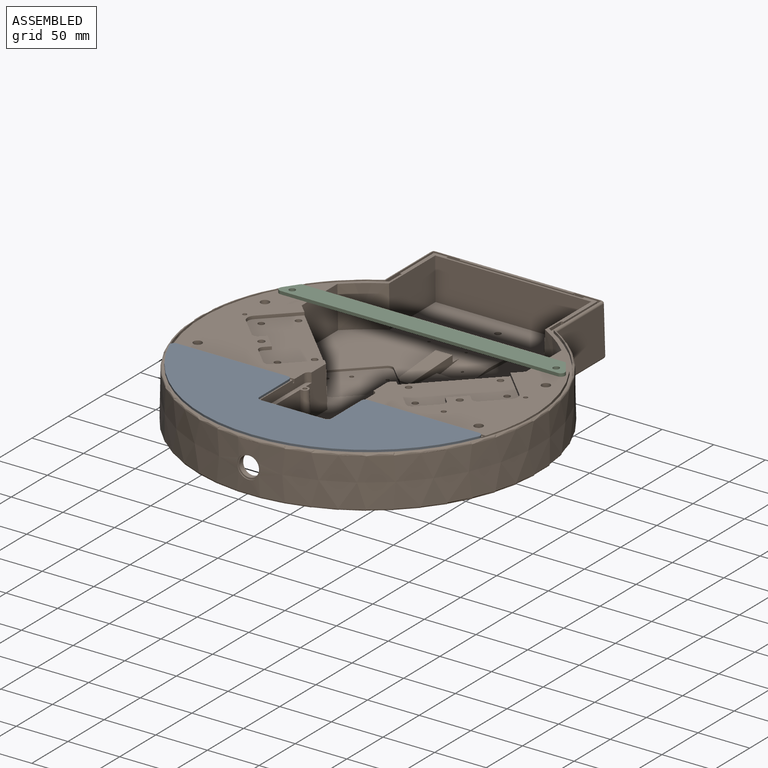
[diagram: assembled view]
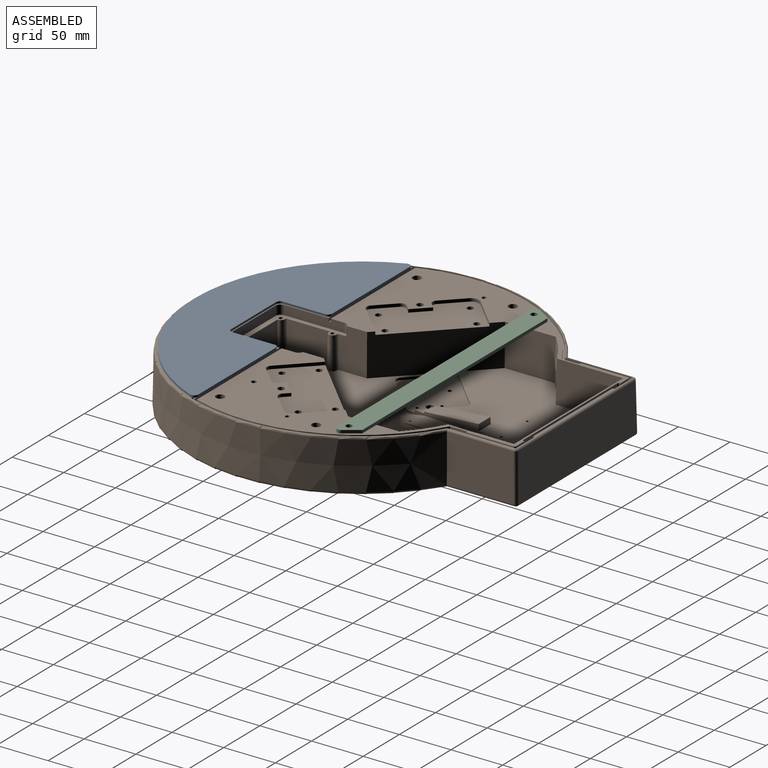
[diagram: assembled view, second angle]
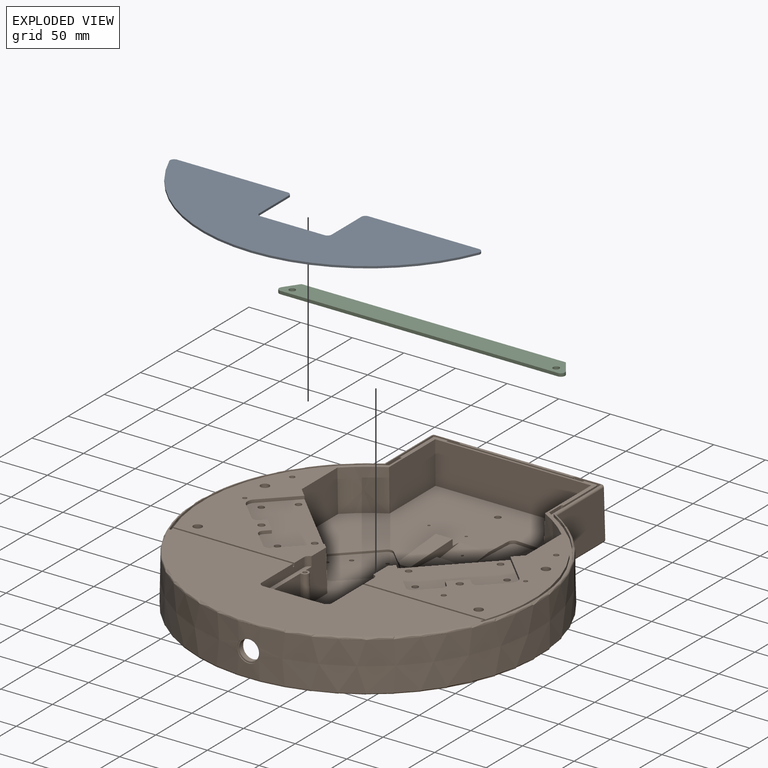
[diagram: exploded view]
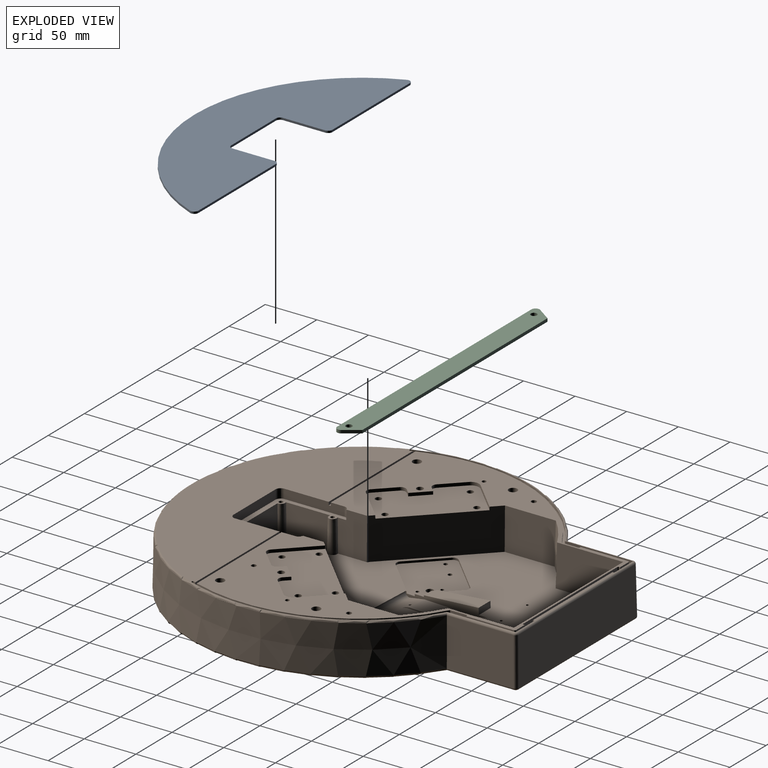
[diagram: exploded view, second angle]
ASSEMBLY  parts=3 mates=2
PART A: 14 faces, bbox 300.3x106x2 mm
  f0: cylinder r=4mm len=5.52mm, axis (0,0,-1), area 15.7mm2, adj f1,f11,f12,f13
  f1: cylinder r=161.98mm len=299.7mm, axis (0,0,-1), area 765.4mm2, adj f0,f2,f12,f13
  f2: cylinder r=4mm len=5.52mm, axis (0,0,-1), area 15.7mm2, adj f1,f3,f12,f13
  f3: plane 107.15x2mm, normal (0,1,0), area 214.3mm2, adj f2,f4,f12,f13
  f4: cylinder r=4mm len=4mm, axis (0,0,-1), area 12.6mm2, adj f3,f5,f12,f13
  f5: plane 41x2mm, normal (-1,0,0), area 82mm2, adj f4,f6,f12,f13
  f6: cylinder r=4mm len=4mm, axis (0,0,-1), area 12.6mm2, adj f5,f7,f12,f13
  f7: plane 62x2mm, normal (0,1,0), area 124mm2, adj f6,f8,f12,f13
  f8: cylinder r=4mm len=4mm, axis (0,0,-1), area 12.6mm2, adj f7,f9,f12,f13
  f9: plane 41x2mm, normal (1,0,0), area 82mm2, adj f8,f10,f12,f13
  f10: cylinder r=4mm len=4mm, axis (0,0,-1), area 12.6mm2, adj f9,f11,f12,f13
  f11: plane 107.15x2mm, normal (0,1,0), area 214.3mm2, adj f0,f10,f12,f13
  f12: plane 300.3x106mm, normal (0,0,1), area 20000.5mm2, adj f0,f1,f2,f3,f4,f5,f6,f7
  f13: plane 300.3x106mm, normal (0,0,-1), area 20000.5mm2, adj f0,f1,f2,f3,f4,f5,f6,f7
PART B: 355 faces, bbox 390.3x359.4x51.5 mm
  f0: cylinder r=1.25mm len=10mm, axis (0,0,-1), area 78.5mm2, adj f1,f57
  f1: cone r=1.25mm half-angle=59deg, axis (0,0,-1), area 5.7mm2, adj f0
  f2: cylinder r=5mm len=5.26mm, axis (0,0,1), area 23.6mm2, adj f56,f350,f351,f352
  f3: cylinder r=1.25mm len=6mm, axis (0,0,1), area 47.1mm2, adj f56,f170
  f4: cylinder r=1.25mm len=6mm, axis (0,0,1), area 47.1mm2, adj f56,f170
  f5: cylinder r=1mm len=1.71mm, axis (0,0,1), area 1.6mm2, adj f310,f338,f339,f340
  f6: cylinder r=2.4mm len=6mm, axis (0,0,1), area 90.5mm2, adj f75,f112
  f7: cylinder r=4mm len=85.13mm, axis (0.05,1,0), area 644.6mm2, adj f56,f316,f317,f319,f320
  f8: cylinder r=1.65mm len=4mm, axis (0,0,1), area 39.3mm2, adj f170,f310,f338,f339,f340,f341,f342,f343
  f9: cylinder r=1.25mm len=4.16mm, axis (-0.17,0.01,0.98), area 28mm2, adj f170,f315
  f10: cylinder r=1.25mm len=4.16mm, axis (-0.17,0.01,0.98), area 28mm2, adj f170,f315
  f11: cylinder r=1.25mm len=4.02mm, axis (-0.17,0.01,0.98), area 26.9mm2, adj f170,f317
  f12: cylinder r=1.25mm len=4.02mm, axis (-0.17,0.01,0.98), area 26.9mm2, adj f170,f317
  f13: cylinder r=1.65mm len=4mm, axis (0,0,1), area 41.5mm2, adj f67,f170
  f14: cylinder r=1.65mm len=4mm, axis (0,0,1), area 41.5mm2, adj f67,f170
  f15: cylinder r=3.5mm len=7mm, axis (0,0,1), area 88mm2, adj f67,f170
  f16: cylinder r=3mm len=6mm, axis (0,0,-1), area 113.1mm2, adj f56,f170
  f17: cylinder r=9.6mm len=19.2mm, axis (-1,0,0), area 313.8mm2, adj f71,f72
  f18: cylinder r=11mm len=22mm, axis (-1,0,0), area 55.2mm2, adj f72,f73
  f19: cylinder r=2mm len=4mm, axis (0,0,1), area 50.3mm2, adj f67,f170
  f20: cylinder r=2mm len=4mm, axis (0,0,1), area 50.3mm2, adj f67,f170
  f21: cylinder r=5mm len=7.07mm, axis (0,0,1), area 15.7mm2, adj f56,f65,f67,f312
  f22: cylinder r=2mm len=4mm, axis (0,0,1), area 50.3mm2, adj f170,f310
  f23: cylinder r=2mm len=4mm, axis (0,0,1), area 50.3mm2, adj f170,f310
  f24: cylinder r=5mm len=5.26mm, axis (0,0,1), area 15.7mm2, adj f56,f304,f305,f310
  f25: cylinder r=2mm len=15mm, axis (0,0,1), area 188.5mm2, adj f230,f302
  f26: cylinder r=2mm len=15mm, axis (0,0,1), area 188.5mm2, adj f230,f301
  f27: cylinder r=2mm len=15mm, axis (0,0,1), area 188.5mm2, adj f230,f300
  f28: cylinder r=2mm len=15mm, axis (0,0,1), area 188.5mm2, adj f230,f299
  f29: cylinder r=3mm len=20mm, axis (0,0,-1), area 377mm2, adj f74,f298
  f30: cylinder r=2.5mm len=6mm, axis (0,0,1), area 94.2mm2, adj f75,f76
  f31: cylinder r=3.2mm len=9mm, axis (0,0,1), area 181mm2, adj f75,f77
  f32: cylinder r=2mm len=9mm, axis (0,0,1), area 113.1mm2, adj f75,f78
  f33: cylinder r=4.15mm len=9mm, axis (0,0,1), area 234.7mm2, adj f75,f78
  f34: cylinder r=4.15mm len=9mm, axis (0,0,1), area 234.7mm2, adj f75,f78
  f35: cylinder r=3mm len=17mm, axis (0,0,1), area 320.4mm2, adj f284,f297
  f36: cylinder r=3mm len=17mm, axis (0,0,1), area 320.4mm2, adj f284,f296
  f37: cylinder r=3mm len=17mm, axis (0,0,1), area 320.4mm2, adj f284,f295
  f38: cylinder r=3mm len=17mm, axis (0,0,1), area 320.4mm2, adj f284,f294
  f39: cylinder r=3mm len=20mm, axis (0,0,-1), area 377mm2, adj f57,f281
  f40: cylinder r=2.5mm len=6mm, axis (0,0,1), area 94.2mm2, adj f75,f102
  f41: cylinder r=3.2mm len=9mm, axis (0,0,1), area 181mm2, adj f75,f111
  f42: cylinder r=2mm len=9mm, axis (0,0,1), area 113.1mm2, adj f75,f189
  f43: cylinder r=4.15mm len=9mm, axis (0,0,1), area 234.7mm2, adj f75,f189
  f44: cylinder r=4.15mm len=9mm, axis (0,0,1), area 234.7mm2, adj f75,f189
  f45: cylinder r=3mm len=17mm, axis (0,0,1), area 320.4mm2, adj f267,f280
  f46: cylinder r=3mm len=17mm, axis (0,0,1), area 320.4mm2, adj f267,f279
  f47: cylinder r=3mm len=17mm, axis (0,0,1), area 320.4mm2, adj f267,f278
  f48: cylinder r=3mm len=17mm, axis (0,0,1), area 320.4mm2, adj f267,f277
  f49: cone r=6mm half-angle=1.5deg, axis (0,0,1), area 476.4mm2, adj f189,f199,f200,f201
  f50: cone r=6mm half-angle=1.5deg, axis (0,0,1), area 135.8mm2, adj f111,f119,f196,f198
  f51: cone r=6mm half-angle=1.5deg, axis (0,0,1), area 167.3mm2, adj f109,f118,f119,f195
  f52: cone r=6mm half-angle=1.5deg, axis (0,0,1), area 476.4mm2, adj f78,f136,f137,f176
  f53: cone r=6mm half-angle=1.5deg, axis (0,0,1), area 135.8mm2, adj f77,f138,f140,f177
  f54: cone r=6mm half-angle=1.5deg, axis (0,0,1), area 167.3mm2, adj f135,f138,f142,f143
  f55: plane 34.75x17.26mm, normal (0,0,1), area 526.8mm2, adj f316,f317,f318,f347
  f56: plane 296.91x214.91mm, normal (0,0,1), area 26099.7mm2, adj f2,f3,f4,f7,f16,f21,f24,f64
  f57: plane 184.64x94.33mm, normal (0,0,-1), area 1715.7mm2, adj f0,f39,f59,f60,f71,f100,f101,f104
  f58: plane 14.71x8.62mm, normal (0,0,-1), area 92.4mm2, adj f59,f60,f167,f169,f337
  f59: plane 69.88x30.57mm, normal (0.99,0.16,-0.03), area 2028.1mm2, adj f57,f58,f115,f116,f120,f169,f193,f195
  f60: plane 70.18x30.57mm, normal (-0.99,-0.16,-0.03), area 2059.1mm2, adj f57,f58,f103,f104,f106,f167,f335,f336
  f61: plane 9.65x9.17mm, normal (0,0,1), area 44.2mm2, adj f62,f65,f320
  f62: plane 9.65x1.44mm, normal (-1,0,0), area 13.9mm2, adj f61,f63,f65,f320
  f63: plane 55x16.33mm, normal (-0.09,0,1), area 814.7mm2, adj f62,f64,f65,f70,f320
  f64: plane 16.34x6.25mm, normal (1,0,0.03), area 102.2mm2, adj f56,f63,f70,f320
  f65: plane 28.68x28.68mm, normal (-0.71,0.71,0), area 89.8mm2, adj f21,f56,f61,f62,f63,f67,f70,f320
  f66: plane 36.03x36.03mm, normal (0.71,0.71,0), area 101.9mm2, adj f56,f67,f313,f320
  f67: plane 75.76x73.99mm, normal (0,0,1), area 3048.7mm2, adj f13,f14,f15,f19,f20,f21,f65,f66
  f68: plane 34.96x21.25mm, normal (0,0,1), area 662.8mm2, adj f317,f318,f320,f346
  f69: plane 84.88x4.46mm, normal (0.98,-0.05,0.17), area 6.7mm2, adj f315,f316,f318,f320
  f70: plane 51.42x6.25mm, normal (0,1,0), area 206.1mm2, adj f56,f63,f64,f65
  f71: cone r=158.5mm half-angle=1deg, axis (0,0,-1), area 28884mm2, adj f17,f57,f74,f76,f78,f99,f101,f102
  f72: plane 22x22mm, normal (-1,0,0), area 90.6mm2, adj f17,f18
  f73: cone r=164.5mm half-angle=1deg, axis (0,0,-1), area 39196mm2, adj f18,f151,f153,f212,f219
  f74: plane 184.64x111.96mm, normal (0,0,-1), area 1838.7mm2, adj f29,f71,f121,f122,f124,f127,f128,f130
  f75: plane 320.47x257.73mm, normal (0,0,1), area 17860.1mm2, adj f6,f30,f31,f32,f33,f34,f40,f41
  f76: plane 41.82x28.9mm, normal (0,0,-1), area 654.1mm2, adj f30,f71,f124,f186
  f77: plane 80.84x57.22mm, normal (0,0,-1), area 2574.8mm2, adj f31,f53,f138,f140,f144,f145,f146,f147
  f78: plane 116.94x44.45mm, normal (0,0,-1), area 4502.4mm2, adj f32,f33,f34,f52,f71,f121,f122,f136
  f79: plane 79.55x78.93mm, normal (0.71,-0.71,0.03), area 4166.1mm2, adj f56,f75,f155,f156,f282,f283,f284
  f80: plane 369.57x325.07mm, normal (0,0,1), area 21110.3mm2, adj f81,f82,f212,f213,f214,f215,f216,f217
  f81: plane 116.5x3mm, normal (1,0,0), area 349.5mm2, adj f80,f82,f249,f259
  f82: plane 58x9mm, normal (0,1,0), area 516mm2, adj f75,f80,f81,f228,f230,f233,f248,f249
  f83: plane 42.53x31mm, normal (0,1,0.03), area 1293.7mm2, adj f56,f94,f97,f230
  f84: plane 48.56x31.01mm, normal (1,0,0.03), area 1480.1mm2, adj f56,f87,f88,f92,f93,f230
  f85: plane 42.53x31mm, normal (0,-1,0.03), area 1293.7mm2, adj f56,f86,f90,f230
  f86: plane 31x1.76mm, normal (1,0,0.03), area 42.1mm2, adj f56,f85,f87,f230
  f87: cone r=3.5mm half-angle=1.5deg, axis (0,0,-1), area 208mm2, adj f56,f84,f86,f88,f230
  f88: plane 18.97x0.51mm, normal (0,-1,0.03), area 4.9mm2, adj f84,f87,f230
  f89: cone r=3.5mm half-angle=1.5deg, axis (0,0,-1), area 403.5mm2, adj f56,f90,f91,f230
  f90: plane 31x1.76mm, normal (-1,0,0.03), area 42.1mm2, adj f56,f85,f89,f230
  f91: plane 31x1.76mm, normal (1,0,0.03), area 42.1mm2, adj f56,f89,f155,f230
  f92: plane 18.97x0.51mm, normal (0,1,0.03), area 4.9mm2, adj f84,f93,f230
  f93: cone r=3.5mm half-angle=1.5deg, axis (0,0,-1), area 208mm2, adj f56,f84,f92,f94,f230
  f94: plane 31x1.76mm, normal (1,0,0.03), area 42.1mm2, adj f56,f83,f93,f230
  f95: cone r=3.5mm half-angle=1.5deg, axis (0,0,-1), area 403.5mm2, adj f56,f96,f97,f230
  f96: plane 31x1.76mm, normal (1,0,0.03), area 42.1mm2, adj f56,f95,f98,f230
  f97: plane 31x1.76mm, normal (-1,0,0.03), area 42.1mm2, adj f56,f83,f95,f230
  f98: plane 40x28.7mm, normal (0,1,0.03), area 1053.4mm2, adj f56,f75,f96,f163,f228,f230
  f99: plane 33.78x25.99mm, normal (0,0,-1), area 688.3mm2, adj f71,f100,f172,f207,f209
  f100: plane 144.05x30mm, normal (0,-1,-0.03), area 3766.4mm2, adj f57,f99,f101,f172,f189,f199,f200,f201
  f101: plane 33.53x27.01mm, normal (-1,0,-0.03), area 892.9mm2, adj f57,f71,f100,f189
  f102: plane 41.82x28.9mm, normal (0,0,-1), area 654.1mm2, adj f40,f71,f168,f208
  f103: plane 213.43x65.84mm, normal (0,0,-1), area 8827.7mm2, adj f60,f71,f104,f106,f128,f132,f171,f175
  f104: cone r=7.5mm half-angle=3deg, axis (0,0,1), area 86.9mm2, adj f57,f60,f103,f192
  f105: plane 21.69x17.47mm, normal (0,0,-1), area 172.2mm2, adj f71,f107,f191,f206
  f106: cylinder r=10mm len=11.32mm, axis (1,0,0), area 65.6mm2, adj f60,f103,f167,f171
  f107: cone r=7.5mm half-angle=3deg, axis (0,0,1), area 102.2mm2, adj f57,f105,f191,f206
  f108: plane 44.17x34.11mm, normal (0.61,-0.79,-0.03), area 1068mm2, adj f111,f112,f113,f190,f195,f204
  f109: plane 20.99x18.47mm, normal (-0.61,0.79,-0.03), area 404.9mm2, adj f51,f118,f195,f203
  f110: plane 20.58x17.22mm, normal (0.61,-0.79,-0.03), area 415.6mm2, adj f111,f195,f202,f204
  f111: plane 80.84x57.22mm, normal (0,0,-1), area 2574.8mm2, adj f41,f50,f108,f110,f113,f119,f190,f194
  f112: plane 65.67x28.64mm, normal (0,0,-1), area 922.4mm2, adj f6,f108,f113,f190
  f113: plane 28.84x28.84mm, normal (-0.71,-0.71,-0.03), area 122mm2, adj f108,f111,f112,f190
  f114: plane 13.51x5.67mm, normal (0,0,-1), area 32.8mm2, adj f119,f190,f197,f205
  f115: plane 65.72x56.93mm, normal (0,0,-1), area 2026.2mm2, adj f59,f117,f120,f188,f193
  f116: cone r=7.5mm half-angle=3deg, axis (0,0,1), area 47mm2, adj f57,f59,f190,f195
  f117: plane 4.78x4.66mm, normal (-0.71,-0.71,-0.03), area 19.7mm2, adj f115,f118,f188,f193
  f118: plane 38.73x33.95mm, normal (0,0,-1), area 402mm2, adj f51,f109,f117,f119,f120,f188,f193,f203
  f119: plane 80.13x80.06mm, normal (-0.71,-0.71,-0.03), area 3493.4mm2, adj f50,f51,f57,f111,f114,f118,f120,f168
  f120: cylinder r=10mm len=81.33mm, axis (1,0,0), area 1151.6mm2, adj f59,f115,f118,f119,f169,f188
  f121: plane 144.08x30.03mm, normal (0,1,-0.03), area 3766.4mm2, adj f74,f78,f122,f123,f133,f136,f137,f176
  f122: plane 33.53x27.01mm, normal (-1,0,-0.03), area 892.9mm2, adj f71,f74,f78,f121
  f123: plane 33.78x25.99mm, normal (0,0,-1), area 688.3mm2, adj f71,f121,f133,f185,f187
  f124: plane 50.77x40.19mm, normal (0,1,-0.03), area 1793mm2, adj f71,f74,f76,f138,f170,f186
  f125: plane 50.29x39.98mm, normal (-0.61,-0.79,-0.03), area 1194.4mm2, adj f126,f135,f142,f149,f180,f182
  f126: plane 65.72x56.93mm, normal (0,0,-1), area 2026.2mm2, adj f125,f131,f149,f173,f182
  f127: cone r=7.5mm half-angle=3deg, axis (0,0,1), area 47mm2, adj f74,f135,f147,f182
  f128: cone r=7.5mm half-angle=3deg, axis (0,0,1), area 86.9mm2, adj f74,f103,f175,f183
  f129: plane 21.69x17.47mm, normal (0,0,-1), area 172.2mm2, adj f71,f134,f174,f184
  f130: plane 86.07x30.26mm, normal (0,1,-0.03), area 2463.4mm2, adj f74,f131,f138,f167,f170,f182
  f131: cylinder r=10mm len=81.33mm, axis (-1,0,0), area 1151.6mm2, adj f126,f130,f138,f142,f173,f182
  f132: cylinder r=10mm len=11.32mm, axis (-1,0,0), area 65.6mm2, adj f103,f167,f171,f183
  f133: cone r=7.5mm half-angle=3deg, axis (0,0,1), area 37.3mm2, adj f74,f121,f123,f185
  f134: cone r=7.5mm half-angle=3deg, axis (0,0,1), area 102.4mm2, adj f74,f129,f174,f184
  f135: plane 81.62x65.57mm, normal (0,0,-1), area 700.6mm2, adj f54,f125,f127,f138,f143,f144,f145,f146
  f136: plane 17.11x7.06mm, normal (0.71,0.71,-0.03), area 156.5mm2, adj f52,f78,f121,f176
  f137: plane 17.07x2.55mm, normal (-0.71,-0.71,-0.03), area 39.8mm2, adj f52,f78,f121,f176
  f138: plane 80.13x80.06mm, normal (-0.71,0.71,-0.03), area 3493.4mm2, adj f53,f54,f74,f77,f124,f130,f131,f135
  f139: plane 13.51x5.67mm, normal (0,0,-1), area 32.8mm2, adj f138,f141,f147,f181
  f140: plane 17.07x7.8mm, normal (-0.71,-0.71,-0.03), area 175.6mm2, adj f53,f77,f147,f177
  f141: plane 17.11x2.89mm, normal (0.71,0.71,-0.03), area 47.4mm2, adj f139,f147,f177,f181
  f142: plane 38.73x33.95mm, normal (0,0,-1), area 402mm2, adj f54,f125,f131,f138,f143,f149,f173,f180
  f143: plane 20.99x18.47mm, normal (-0.61,-0.79,-0.03), area 404.9mm2, adj f54,f135,f142,f180
  f144: plane 20.58x17.22mm, normal (0.61,0.79,-0.03), area 415.6mm2, adj f77,f135,f178,f179
  f145: plane 44.17x34.11mm, normal (0.61,0.79,-0.03), area 1068mm2, adj f77,f135,f147,f148,f150,f179
  f146: plane 17x2.78mm, normal (0.61,0.79,-0.03), area 49mm2, adj f77,f135,f138,f178
  f147: plane 137.68x30mm, normal (0,-1,-0.03), area 3649.7mm2, adj f74,f77,f127,f135,f138,f139,f140,f141
  f148: plane 65.67x28.64mm, normal (0,0,-1), area 940.5mm2, adj f145,f147,f150
  f149: plane 4.78x4.66mm, normal (-0.71,0.71,-0.03), area 19.7mm2, adj f125,f126,f142,f173
  f150: plane 28.84x28.84mm, normal (-0.71,0.71,-0.03), area 122mm2, adj f77,f145,f147,f148
  f151: plane 65.09x46mm, normal (0,1,0.02), area 2965.4mm2, adj f73,f211,f214,f221
  f152: plane 162.68x46mm, normal (1,0,0.02), area 7447.3mm2, adj f210,f211,f217,f222
  f153: plane 65.09x46mm, normal (0,-1,0.02), area 2965.4mm2, adj f73,f210,f213,f218
  f154: plane 371.18x326.68mm, normal (0,0,-1), area 2289.9mm2, adj f218,f219,f220,f221,f222,f223,f224,f225
  f155: plane 40x28.7mm, normal (0,-1,0.03), area 1053.4mm2, adj f56,f75,f79,f91,f229,f230
  f156: plane 49.28x40mm, normal (0,-1,0.03), area 1954.4mm2, adj f56,f75,f79,f157
  f157: cone r=156.5mm half-angle=1.5deg, axis (0,0,1), area 1642.5mm2, adj f56,f75,f156,f158
  f158: plane 64.54x40mm, normal (0,-1,0.03), area 2549mm2, adj f56,f75,f157,f159
  f159: plane 151x40mm, normal (-1,0,0.03), area 6000.2mm2, adj f56,f75,f158,f160
  f160: plane 64.54x40mm, normal (0,1,0.03), area 2549mm2, adj f56,f75,f159,f161
  f161: cone r=156.5mm half-angle=1.5deg, axis (0,0,1), area 1642.5mm2, adj f56,f75,f160,f162
  f162: plane 49.28x40mm, normal (0,1,0.03), area 1954.4mm2, adj f56,f75,f161,f163
  f163: plane 79.55x78.93mm, normal (0.71,0.71,0.03), area 4166.1mm2, adj f56,f75,f98,f162,f265,f266,f267,f319
  f164: plane 65.11x2.04mm, normal (0,-1,-0.02), area 132.5mm2, adj f71,f165,f170,f226
  f165: plane 156.68x2.04mm, normal (-1,0,-0.02), area 318.8mm2, adj f164,f166,f170,f227
  f166: plane 65.11x2.04mm, normal (0,1,-0.02), area 132.5mm2, adj f71,f165,f170,f225
  f167: plane 71.66x32.19mm, normal (-1,0,-0.03), area 2150.7mm2, adj f58,f60,f74,f106,f130,f132,f169,f170
  f168: plane 50.77x40.19mm, normal (0,-1,-0.03), area 1793mm2, adj f57,f71,f102,f119,f170,f208
  f169: plane 86.07x30.26mm, normal (0,-1,-0.03), area 2463.4mm2, adj f58,f59,f119,f120,f167,f170
  f170: plane 306.71x226.7mm, normal (0,0,-1), area 44266.5mm2, adj f3,f4,f8,f9,f10,f11,f12,f13
  f171: cylinder r=10mm len=91.17mm, axis (0,-1,0), area 1213.5mm2, adj f103,f106,f132,f167
  f172: cone r=7.5mm half-angle=3deg, axis (0,0,1), area 37.6mm2, adj f57,f99,f100,f207
  f173: plane 29.96x29.85mm, normal (-0.71,-0.71,-0.03), area 114.9mm2, adj f126,f131,f142,f149
  f174: plane 30.01x19.11mm, normal (0,1,-0.03), area 529.3mm2, adj f71,f74,f129,f134
  f175: plane 30.02x24.09mm, normal (0,-1,-0.03), area 701.7mm2, adj f71,f74,f103,f128
  f176: plane 17.42x13.04mm, normal (0,0,-1), area 129.7mm2, adj f52,f121,f136,f137
  f177: plane 18.21x13.24mm, normal (0,0,-1), area 121.1mm2, adj f53,f138,f140,f141,f147,f181
  f178: cone r=6mm half-angle=1.5deg, axis (0,0,1), area 30.1mm2, adj f77,f135,f144,f146
  f179: cone r=6mm half-angle=1.5deg, axis (0,0,1), area 246.1mm2, adj f77,f135,f144,f145
  f180: cone r=6mm half-angle=1.5deg, axis (0,0,1), area 50.2mm2, adj f125,f135,f142,f143
  f181: cone r=6mm half-angle=1.5deg, axis (0,0,1), area 145mm2, adj f138,f139,f141,f177
  f182: plane 69.86x30.55mm, normal (0.99,-0.16,-0.03), area 2046.4mm2, adj f74,f125,f126,f127,f130,f131,f135
  f183: plane 70.16x30.54mm, normal (-0.99,0.16,-0.03), area 2077.3mm2, adj f74,f103,f128,f132,f167
  f184: plane 30.01x17.83mm, normal (-0.99,0.16,-0.03), area 499.9mm2, adj f71,f74,f129,f134
  f185: plane 30.01x23.34mm, normal (0.99,-0.16,-0.03), area 688.4mm2, adj f71,f74,f123,f133
  f186: plane 30.68x30.05mm, normal (1,0,-0.03), area 893.3mm2, adj f71,f74,f76,f124
  f187: plane 33.95x3mm, normal (-1,0,-0.03), area 101.6mm2, adj f71,f78,f121,f123
  f188: plane 29.96x29.85mm, normal (-0.71,0.71,-0.03), area 114.9mm2, adj f115,f117,f118,f120
  f189: plane 116.94x44.45mm, normal (0,0,-1), area 4502.4mm2, adj f42,f43,f44,f49,f71,f100,f101,f199
  f190: plane 137.68x30mm, normal (0,1,-0.03), area 3649.7mm2, adj f57,f108,f111,f112,f113,f114,f116,f119
  f191: plane 30.03x19.13mm, normal (0,-1,-0.03), area 529.3mm2, adj f57,f71,f105,f107
  f192: plane 30.02x24.09mm, normal (0,1,-0.03), area 701.7mm2, adj f57,f71,f103,f104
  f193: plane 50.29x39.98mm, normal (-0.61,0.79,-0.03), area 1194.4mm2, adj f59,f115,f117,f118,f195,f203
  f194: plane 17x2.78mm, normal (0.61,-0.79,-0.03), area 49mm2, adj f111,f119,f195,f202
  f195: plane 81.62x65.57mm, normal (0,0,-1), area 700.6mm2, adj f51,f59,f108,f109,f110,f116,f119,f190
  f196: plane 18.21x13.24mm, normal (0,0,-1), area 121.1mm2, adj f50,f119,f190,f197,f198,f205
  f197: plane 17.11x2.89mm, normal (0.71,-0.71,-0.03), area 47.4mm2, adj f114,f190,f196,f205
  f198: plane 17.07x7.8mm, normal (-0.71,0.71,-0.03), area 175.6mm2, adj f50,f111,f190,f196
  f199: plane 17.07x2.55mm, normal (-0.71,0.71,-0.03), area 39.8mm2, adj f49,f100,f189,f201
  f200: plane 17.11x7.06mm, normal (0.71,-0.71,-0.03), area 156.5mm2, adj f49,f100,f189,f201
  f201: plane 17.42x13.04mm, normal (0,0,-1), area 129.7mm2, adj f49,f100,f199,f200
  f202: cone r=6mm half-angle=1.5deg, axis (0,0,1), area 30.1mm2, adj f110,f111,f194,f195
  f203: cone r=6mm half-angle=1.5deg, axis (0,0,1), area 50.2mm2, adj f109,f118,f193,f195
  f204: cone r=6mm half-angle=1.5deg, axis (0,0,1), area 246.1mm2, adj f108,f110,f111,f195
  f205: cone r=6mm half-angle=1.5deg, axis (0,0,1), area 145mm2, adj f114,f119,f196,f197
  f206: plane 30.01x17.83mm, normal (-0.99,-0.16,-0.03), area 499.9mm2, adj f57,f71,f105,f107
  f207: plane 30.01x23.34mm, normal (0.99,0.16,-0.03), area 688.4mm2, adj f57,f71,f99,f172
  f208: plane 30.68x30.05mm, normal (1,0,-0.03), area 893.3mm2, adj f57,f71,f102,f168
  f209: plane 33.95x3mm, normal (-1,0,-0.03), area 101.6mm2, adj f71,f99,f100,f189
  f210: cylinder r=3mm len=46.02mm, axis (-0.02,0.02,1), area 216.8mm2, adj f152,f153,f215,f220
  f211: cylinder r=3mm len=46.02mm, axis (-0.02,-0.02,1), area 216.8mm2, adj f151,f152,f216,f223
  f212: torus R=162.53mm, axis (0,0,1), area 2658.9mm2, adj f73,f80,f213,f214
  f213: cylinder r=2mm len=65.43mm, axis (1,0,0), area 201.5mm2, adj f80,f153,f212,f215
  f214: cylinder r=2mm len=65.43mm, axis (-1,0,0), area 201.5mm2, adj f80,f151,f212,f216
  f215: bspline ~3x3mm, area 11mm2, adj f80,f210,f213,f217
  f216: bspline ~3x3mm, area 11mm2, adj f80,f211,f214,f217
  f217: cylinder r=2mm len=161.07mm, axis (0,1,0), area 500.4mm2, adj f80,f152,f215,f216
  f218: cylinder r=2mm len=65.77mm, axis (-1,0,0), area 207.1mm2, adj f153,f154,f219,f220
  f219: torus R=163.34mm, axis (0,0,1), area 2729.4mm2, adj f73,f154,f218,f221
  f220: bspline ~3.04x3.04mm, area 11.4mm2, adj f154,f210,f218,f222
  f221: cylinder r=2mm len=65.77mm, axis (1,0,0), area 207.1mm2, adj f151,f154,f219,f223
  f222: cylinder r=2mm len=162.68mm, axis (0,-1,0), area 516.7mm2, adj f152,f154,f220,f223
  f223: bspline ~3.04x3.04mm, area 11.4mm2, adj f154,f211,f221,f222
  f224: torus R=161.34mm, axis (0,0,1), area 2609.8mm2, adj f71,f154,f225,f226
  f225: cylinder r=2mm len=67.09mm, axis (1,0,0), area 203.5mm2, adj f154,f166,f224,f227
  f226: cylinder r=2mm len=67.09mm, axis (-1,0,0), area 203.5mm2, adj f154,f164,f224,f227
  f227: cylinder r=2mm len=160.67mm, axis (0,1,0), area 493mm2, adj f154,f165,f225,f226
  f228: cylinder r=5mm len=9mm, axis (0,0,1), area 62.7mm2, adj f75,f82,f98,f230
  f229: cylinder r=5mm len=9mm, axis (0,0,1), area 62.7mm2, adj f75,f155,f230,f232
  f230: plane 68x67.94mm, normal (0,0,1), area 929.7mm2, adj f25,f26,f27,f28,f82,f83,f84,f85
  f231: cylinder r=5mm len=9mm, axis (0,0,1), area 70.7mm2, adj f80,f230,f232,f234
  f232: plane 58x9mm, normal (0,-1,0), area 516mm2, adj f75,f80,f229,f230,f231,f235,f236,f237
  f233: cylinder r=5mm len=9mm, axis (0,0,1), area 70.7mm2, adj f80,f82,f230,f234
  f234: plane 58x9mm, normal (1,0,0), area 522mm2, adj f80,f230,f231,f233
  f235: plane 116.5x3mm, normal (1,0,0), area 349.5mm2, adj f80,f232,f237,f246
  f236: plane 117.22x3mm, normal (-1,0,0), area 351.6mm2, adj f75,f232,f237,f245
  f237: plane 265.09x128.24mm, normal (0,0,1), area 905.3mm2, adj f232,f235,f236,f238,f239,f240,f241,f242
  f238: cylinder r=162.23mm len=197.71mm, axis (0,0,1), area 683.7mm2, adj f80,f237,f247,f332
  f239: plane 64.74x3mm, normal (0,-1,0), area 194.2mm2, adj f80,f237,f240,f332
  f240: extruded ~3x0.7mm, area 3.3mm2, adj f80,f237,f239,f241
  f241: plane 24.53x3mm, normal (-1,0,0), area 73.6mm2, adj f80,f237,f240,f325
  f242: plane 3x0.7mm, normal (0,1,0), area 2.1mm2, adj f80,f237,f261,f325
  f243: plane 11.97x3mm, normal (1,0,0), area 35.9mm2, adj f75,f237,f262,f331
  f244: plane 45.84x3mm, normal (0,1,0), area 137.5mm2, adj f75,f237,f323,f331
  f245: cylinder r=160.23mm len=193.11mm, axis (0,0,1), area 673.6mm2, adj f75,f236,f237,f327
  f246: cylinder r=160.23mm len=3mm, axis (0,0,1), area 6.4mm2, adj f80,f235,f237,f247
  f247: cylinder r=1mm len=3mm, axis (0,0,1), area 9.4mm2, adj f80,f237,f238,f246
  f248: plane 117.22x3mm, normal (-1,0,0), area 351.6mm2, adj f75,f82,f249,f250
  f249: plane 265.09x128.23mm, normal (0,0,1), area 905.4mm2, adj f81,f82,f248,f250,f251,f252,f253,f254
  f250: cylinder r=160.23mm len=193.11mm, axis (0,0,1), area 673.6mm2, adj f75,f248,f249,f329
  f251: plane 45.84x3mm, normal (0,-1,0), area 137.5mm2, adj f75,f249,f322,f334
  f252: plane 11.97x3mm, normal (1,0,0), area 35.9mm2, adj f75,f249,f260,f334
  f253: plane 3x0.7mm, normal (0,-1,0), area 2.1mm2, adj f80,f249,f261,f326
  f254: plane 24.53x3mm, normal (-1,0,0), area 73.6mm2, adj f80,f249,f255,f326
  f255: extruded ~3x0.7mm, area 3.3mm2, adj f80,f249,f254,f256
  f256: plane 64.74x3mm, normal (0,1,0), area 194.2mm2, adj f80,f249,f255,f333
  f257: cylinder r=162.23mm len=197.71mm, axis (0,0,1), area 683.7mm2, adj f80,f249,f258,f333
  f258: cylinder r=1mm len=3mm, axis (0,0,1), area 9.4mm2, adj f80,f249,f257,f259
  f259: cylinder r=160.23mm len=3mm, axis (0,0,1), area 6.4mm2, adj f80,f81,f249,f258
  f260: cylinder r=1.15mm len=8mm, axis (0,0,1), area 26.4mm2, adj f75,f249,f252,f261,f263,f264
  f261: plane 130x8mm, normal (-1,0,0), area 980mm2, adj f80,f237,f242,f249,f253,f260,f262,f264
  f262: cylinder r=1.15mm len=8mm, axis (0,0,1), area 26.4mm2, adj f75,f237,f243,f261,f263,f264
  f263: plane 130x8mm, normal (1,0,0), area 1040mm2, adj f75,f260,f262,f264
  f264: plane 132.3x2.3mm, normal (0,0,1), area 303.2mm2, adj f260,f261,f262,f263
  f265: plane 30.87x30.85mm, normal (0.71,-0.71,0), area 130.8mm2, adj f75,f163,f267,f268
  f266: plane 28.73x28.71mm, normal (-0.71,0.71,0), area 121.7mm2, adj f75,f163,f267,f269
  f267: plane 97.37x96.13mm, normal (0,0,1), area 4091.1mm2, adj f45,f46,f47,f48,f163,f265,f266,f268
  f268: cylinder r=5mm len=7.07mm, axis (0,0,1), area 23.6mm2, adj f75,f265,f267,f276
  f269: cylinder r=8mm len=11.31mm, axis (0,0,1), area 37.7mm2, adj f75,f266,f267,f270
  f270: plane 18.39x18.38mm, normal (0.71,0.71,0), area 78mm2, adj f75,f267,f269,f271
  f271: cylinder r=5mm len=7.07mm, axis (0,0,1), area 23.6mm2, adj f75,f267,f270,f272
  f272: plane 4.95x4.95mm, normal (0.71,-0.71,0), area 21mm2, adj f75,f267,f271,f273
  f273: plane 14.15x14.14mm, normal (0.71,0.71,0), area 60mm2, adj f75,f267,f272,f274
  f274: plane 4.95x4.95mm, normal (-0.71,0.71,0), area 21mm2, adj f75,f267,f273,f275
  f275: cylinder r=5mm len=7.07mm, axis (0,0,1), area 23.6mm2, adj f75,f267,f274,f276
  f276: plane 16.27x16.26mm, normal (0.71,0.71,0), area 69mm2, adj f75,f267,f268,f275
  f277: plane 6x6mm, normal (0,0,1), area 28.3mm2, adj f48
  f278: plane 6x6mm, normal (0,0,1), area 28.3mm2, adj f47
  f279: plane 6x6mm, normal (0,0,1), area 28.3mm2, adj f46
  f280: plane 6x6mm, normal (0,0,1), area 28.3mm2, adj f45
  f281: plane 6x6mm, normal (0,0,-1), area 28.3mm2, adj f39
  f282: plane 28.73x28.71mm, normal (-0.71,-0.71,0), area 121.7mm2, adj f75,f79,f284,f293
  f283: plane 30.87x30.85mm, normal (0.71,0.71,0), area 130.8mm2, adj f75,f79,f284,f285
  f284: plane 97.37x96.13mm, normal (0,0,1), area 4091.1mm2, adj f35,f36,f37,f38,f79,f282,f283,f285
  f285: cylinder r=5mm len=7.07mm, axis (0,0,1), area 23.6mm2, adj f75,f283,f284,f286
  f286: plane 16.27x16.26mm, normal (0.71,-0.71,0), area 69mm2, adj f75,f284,f285,f287
  f287: cylinder r=5mm len=7.07mm, axis (0,0,1), area 23.6mm2, adj f75,f284,f286,f288
  f288: plane 4.95x4.95mm, normal (-0.71,-0.71,0), area 21mm2, adj f75,f284,f287,f289
  f289: plane 14.15x14.14mm, normal (0.71,-0.71,0), area 60mm2, adj f75,f284,f288,f290
  f290: plane 4.95x4.95mm, normal (0.71,0.71,0), area 21mm2, adj f75,f284,f289,f291
  f291: cylinder r=5mm len=7.07mm, axis (0,0,1), area 23.6mm2, adj f75,f284,f290,f292
  f292: plane 18.39x18.38mm, normal (0.71,-0.71,0), area 78mm2, adj f75,f284,f291,f293
  f293: cylinder r=8mm len=11.31mm, axis (0,0,1), area 37.7mm2, adj f75,f282,f284,f292
  f294: plane 6x6mm, normal (0,0,1), area 28.3mm2, adj f38
  f295: plane 6x6mm, normal (0,0,1), area 28.3mm2, adj f37
  f296: plane 6x6mm, normal (0,0,1), area 28.3mm2, adj f36
  f297: plane 6x6mm, normal (0,0,1), area 28.3mm2, adj f35
  f298: plane 6x6mm, normal (0,0,-1), area 28.3mm2, adj f29
  f299: plane 4x4mm, normal (0,0,1), area 12.6mm2, adj f28
  f300: plane 4x4mm, normal (0,0,1), area 12.6mm2, adj f27
  f301: plane 4x4mm, normal (0,0,1), area 12.6mm2, adj f26
  f302: plane 4x4mm, normal (0,0,1), area 12.6mm2, adj f25
  f303: cylinder r=5mm len=5.26mm, axis (0,0,1), area 15.7mm2, adj f56,f304,f309,f310
  f304: plane 20.47x2mm, normal (-0.05,-1,0), area 41mm2, adj f24,f56,f303,f310
  f305: plane 44.94x2.36mm, normal (-1,0.05,0), area 90mm2, adj f24,f56,f306,f310
  f306: cylinder r=5mm len=5.26mm, axis (0,0,1), area 15.7mm2, adj f56,f305,f307,f310
  f307: plane 20.47x2mm, normal (0.05,1,0), area 41mm2, adj f56,f306,f308,f310
  f308: cylinder r=5mm len=5.26mm, axis (0,0,1), area 15.7mm2, adj f56,f307,f309,f310
  f309: plane 44.94x2.36mm, normal (1,-0.05,0), area 90mm2, adj f56,f303,f308,f310
  f310: plane 56.01x32.83mm, normal (0,0,1), area 1575.4mm2, adj f5,f8,f22,f23,f24,f303,f304,f305
  f311: cylinder r=5mm len=7.07mm, axis (0,0,1), area 15.7mm2, adj f56,f67,f312,f314
  f312: plane 36.77x36.77mm, normal (-0.71,-0.71,0), area 104mm2, adj f21,f56,f67,f311
  f313: cylinder r=5mm len=7.07mm, axis (0,0,1), area 15.7mm2, adj f56,f66,f67,f314
  f314: plane 28.99x28.99mm, normal (0.71,-0.71,0), area 82mm2, adj f56,f67,f311,f313
  f315: plane 86.23x30.16mm, normal (-0.17,0.01,0.98), area 1693.9mm2, adj f9,f10,f56,f69,f316,f320,f350,f351
  f316: plane 82.33x4.6mm, normal (0.05,1,0), area 205.2mm2, adj f7,f55,f56,f69,f315,f317,f318,f319
  f317: plane 85.72x18.92mm, normal (-0.17,0.01,0.98), area 950.2mm2, adj f7,f11,f12,f55,f68,f316,f320,f345
  f318: cylinder r=4mm len=85.07mm, axis (0.05,1,0), area 333.2mm2, adj f55,f68,f69,f316,f320,f345,f346,f347
  f319: plane 1.92x1.83mm, normal (0,0,-1), area 1.7mm2, adj f7,f163,f316
  f320: plane 82.33x10.85mm, normal (-0.05,-1,0), area 401.5mm2, adj f7,f56,f61,f62,f63,f64,f65,f66
  f321: plane 15.41x3mm, normal (0,-1,0), area 46.2mm2, adj f75,f249,f329,f330
  f322: plane 3x1mm, normal (-1,0,0), area 3mm2, adj f75,f249,f251,f330
  f323: plane 3x1mm, normal (-1,0,0), area 3mm2, adj f75,f237,f244,f328
  f324: plane 15.41x3mm, normal (0,1,0), area 46.2mm2, adj f75,f237,f327,f328
  f325: cylinder r=1mm len=3mm, axis (0,0,1), area 4.7mm2, adj f80,f237,f241,f242
  f326: cylinder r=1mm len=3mm, axis (0,0,1), area 4.7mm2, adj f80,f249,f253,f254
  f327: cylinder r=1mm len=3mm, axis (0,0,1), area 3.2mm2, adj f75,f237,f245,f324
  f328: cylinder r=1mm len=3mm, axis (0,0,-1), area 4.7mm2, adj f75,f237,f323,f324
  f329: cylinder r=1mm len=3mm, axis (0,0,1), area 3.2mm2, adj f75,f249,f250,f321
  f330: cylinder r=1mm len=3mm, axis (0,0,-1), area 4.7mm2, adj f75,f249,f321,f322
  f331: cylinder r=1.5mm len=3mm, axis (0,0,1), area 7.1mm2, adj f75,f237,f243,f244
  f332: cylinder r=1.5mm len=3mm, axis (0,0,1), area 4.7mm2, adj f80,f237,f238,f239
  f333: cylinder r=1.5mm len=3mm, axis (0,0,1), area 4.7mm2, adj f80,f249,f256,f257
  f334: cylinder r=1.5mm len=3mm, axis (0,0,1), area 7.1mm2, adj f75,f249,f251,f252
  f335: cylinder r=2mm len=7.14mm, axis (-0.99,-0.16,0), area 41.4mm2, adj f59,f60,f336,f337
  f336: plane 6.5x3mm, normal (-0.16,0.99,0), area 19.5mm2, adj f57,f59,f60,f335
  f337: plane 6.5x3mm, normal (0.16,-0.99,0), area 19.5mm2, adj f58,f59,f60,f335
  f338: plane 9.62x9.62mm, normal (0,0,1), area 23.5mm2, adj f5,f8,f339,f340
  f339: plane 7.91x7.91mm, normal (-0.71,0.71,0), area 5.6mm2, adj f5,f8,f310,f338
  f340: plane 7.91x7.91mm, normal (0.71,-0.71,0), area 5.6mm2, adj f5,f8,f310,f338
  f341: plane 7.91x7.91mm, normal (0.71,-0.71,0), area 5.6mm2, adj f8,f310,f343,f344
  f342: plane 7.91x7.91mm, normal (-0.71,0.71,0), area 5.6mm2, adj f8,f310,f343,f344
  f343: plane 9.62x9.62mm, normal (0,0,1), area 23.5mm2, adj f8,f341,f342,f344
  f344: cylinder r=1mm len=1.71mm, axis (0,0,1), area 1.6mm2, adj f310,f341,f342,f343
  f345: plane 51.84x42.72mm, normal (0,0,1), area 2008.2mm2, adj f317,f318,f346,f347,f348,f349
  f346: plane 36.2x1.9mm, normal (-0.05,-1,0), area 35.7mm2, adj f68,f317,f318,f345,f348
  f347: plane 36.2x1.9mm, normal (0.05,1,0), area 35.7mm2, adj f55,f317,f318,f345,f349
  f348: cylinder r=5mm len=4.11mm, axis (0,0,1), area 1.6mm2, adj f317,f345,f346
  f349: cylinder r=5mm len=3.9mm, axis (0,0,1), area 1.6mm2, adj f317,f345,f347
  f350: plane 48.26x32.16mm, normal (0,0,1), area 1399.7mm2, adj f2,f315,f351,f352,f353,f354
  f351: plane 41.96x3mm, normal (-0.05,-1,0), area 100.5mm2, adj f2,f56,f315,f350
  f352: plane 19.97x3mm, normal (-1,0.05,0), area 60mm2, adj f2,f56,f350,f353
  f353: cylinder r=5mm len=5.26mm, axis (0,0,1), area 23.6mm2, adj f56,f350,f352,f354
  f354: plane 41.96x3mm, normal (0.05,1,0), area 100.5mm2, adj f56,f315,f350,f353
PART C: 10 faces, bbox 276.6x20x3 mm
  f0: plane 13.71x9.59mm, normal (-0.82,-0.57,0), area 50.2mm2, adj f1,f6,f8,f9
  f1: plane 256x3mm, normal (0,-1,0), area 768mm2, adj f0,f2,f8,f9
  f2: plane 13.71x9.59mm, normal (0.82,-0.57,0), area 50.2mm2, adj f1,f3,f8,f9
  f3: cylinder r=4mm len=6.29mm, axis (0,0,-1), area 26.2mm2, adj f2,f4,f8,f9
  f4: plane 268.63x3mm, normal (0,1,0), area 805.9mm2, adj f3,f6,f8,f9
  f5: cylinder r=3mm len=6mm, axis (0,0,-1), area 56.5mm2, adj f8,f9
  f6: cylinder r=4mm len=6.29mm, axis (0,0,-1), area 26.2mm2, adj f0,f4,f8,f9
  f7: cylinder r=3mm len=6mm, axis (0,0,-1), area 56.5mm2, adj f8,f9
  f8: plane 276.63x20mm, normal (0,0,1), area 5316.9mm2, adj f0,f1,f2,f3,f4,f5,f6,f7
  f9: plane 276.63x20mm, normal (0,0,-1), area 5316.9mm2, adj f0,f1,f2,f3,f4,f5,f6,f7
PLACE A t=(59.61,4.53,-19.26)mm
PLACE B rot(axis=(0,0,1),90deg) t=(59.61,4.53,-19.26)mm
PLACE C rot(axis=(-1,0,0),180deg) t=(59.61,157.53,-16.26)mm
MATE fastened B.f80 <-> A.f13  axis (0,0,1) through (59.61,-23.47,-19.26)mm
MATE fastened B.f30 <-> C.f5  axis (0,0,1) through (-68.19,157.53,-19.26)mm
